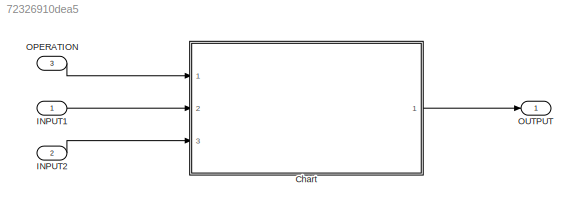
MODEL slx_72326910dea5
KIND model
CONFIG AbsTol = auto
CONFIG EnableMultiTasking = off
CONFIG FixedStep = auto
CONFIG MaxStep = auto
CONFIG MinStep = auto
CONFIG RelTol = 1e-3
CONFIG SampleTimeConstraint = Unconstrained
CONFIG Solver = FixedStepAuto
CONFIG SolverName = FixedStepAuto
CONFIG StartTime = 0.0
CONFIG StopTime = 100
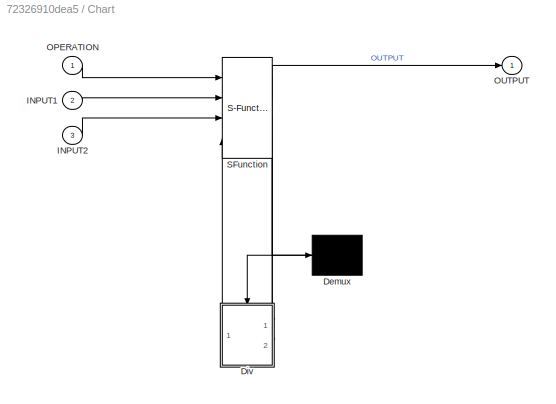
BLOCK [SubSystem] Chart
  BlockKeywords = __PRM__SERIALIZED__DATA__:Stateflow Chart,Stateflow Diagram
  ErrorFcn = Stateflow.Translate.translate
  PermitHierarchicalResolution = ExplicitOnly
  Ports = [3, 1]
  RequestExecContextInheritance = off
  SFBlockType = Chart
  TreatAsAtomicUnit = on
BLOCK [Demux] Chart/ Demux 
  Outputs = 1
  Ports = [1, 1]
BLOCK [S-Function] Chart/ SFunction 
  EnableBusSupport = on
  FunctionName = sf_sfun
  PortCounts = [4 4]
  Ports = [4, 4]
  SFcnIsStateOwnerBlock = off
  SFunctionDeploymentMode = off
  Tag = Stateflow S-Function req14 3
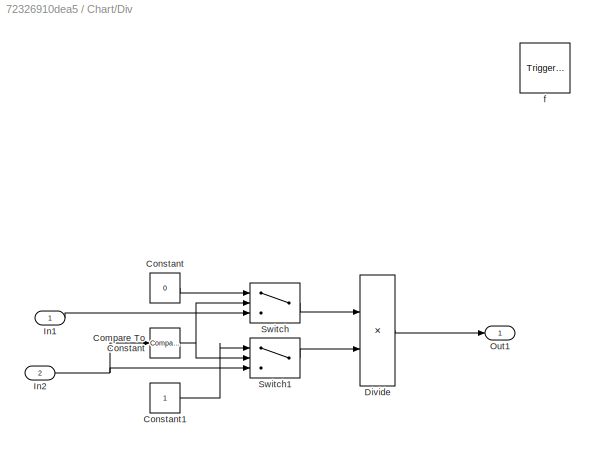
BLOCK [SubSystem] Chart/Div
  Ports = [2, 1, 0, 1]
  PreDeleteFcn = Stateflow.SLINSF.SimulinkMan.removePreDeleteFcn
  RequestExecContextInheritance = off
  UndoDeleteFcn = Stateflow.SLINSF.SimulinkMan.restorePreDeleteFcn
BLOCK [Reference] Chart/Div/Compare To Constant  REF=simulink/Logic and Bit
Operations/Compare
To Constant
  Ports = [1, 1]
  SourceBlock = simulink/Logic and Bit\nOperations/Compare\nTo Constant
  SourceProductBaseCode = SL
  SourceProductName = Simulink
  SourceType = Compare To Constant
BLOCK [Constant] Chart/Div/Constant
  Value = 0
BLOCK [Constant] Chart/Div/Constant1
BLOCK [Product] Chart/Div/Divide
  InputSameDT = off
  Inputs = */
  OutDataTypeStr = Inherit: Inherit via internal rule
  Ports = [2, 1]
  RndMeth = Floor
  SaturateOnIntegerOverflow = off
BLOCK [Inport] Chart/Div/In1
  IconDisplay = Port number
  OutDataTypeStr = double
  PortDimensions = 1
  SignalType = real
  VarSizeSig = No
BLOCK [Inport] Chart/Div/In2
  IconDisplay = Port number
  OutDataTypeStr = double
  Port = 2
  PortDimensions = 1
  SignalType = real
  VarSizeSig = No
BLOCK [Outport] Chart/Div/Out1
  IconDisplay = Port number
BLOCK [Switch] Chart/Div/Switch
  Criteria = u2 ~= 0
  InputSameDT = off
  SaturateOnIntegerOverflow = off
BLOCK [Switch] Chart/Div/Switch1
  Criteria = u2 ~= 0
  InputSameDT = off
  SaturateOnIntegerOverflow = off
BLOCK [TriggerPort] Chart/Div/f
  CopyFcn = Stateflow.SLINSF.SimulinkMan.removeBlockPreDeleteFcn
  Ports = []
  PreDeleteFcn = Stateflow.SLINSF.SimulinkMan.unsafePredeleteFcn
  StatesWhenEnabling = held
  TriggerType = function-call
  VariantControl = (inherit)
BLOCK [Inport] Chart/INPUT1
  IconDisplay = Port number
  Port = 2
BLOCK [Inport] Chart/INPUT2
  IconDisplay = Port number
  Port = 3
BLOCK [Inport] Chart/OPERATION
  IconDisplay = Port number
BLOCK [Outport] Chart/OUTPUT
  IconDisplay = Port number
BLOCK [Inport] INPUT1
  IconDisplay = Port number
BLOCK [Inport] INPUT2
  IconDisplay = Port number
  Port = 2
BLOCK [Inport] OPERATION
  IconDisplay = Port number
  Port = 3
BLOCK [Outport] OUTPUT
  IconDisplay = Port number
LINE Chart:1 -> OUTPUT:1
LINE INPUT1:1 -> Chart:2
LINE INPUT2:1 -> Chart:3
LINE OPERATION:1 -> Chart:1
CHART Chart states=9 transitions=15
  STATE_LABEL 'Addition_1_\nOUTPUT=INPUT1+INPUT2;'
  STATE_LABEL 'resetState'
  STATE_LABEL 'Out1 = Div(In1,In2)'
  STATE_LABEL 'Subtraction_2_\nOUTPUT=INPUT1-INPUT2;'
  STATE_LABEL 'SubtractionModulp_3_\nOUTPUT=INPUT1-INPUT2;'
  STATE_LABEL 'multiplication_4_\nOUTPUT=INPUT1*INPUT2;'
  STATE_LABEL 'exponential_5_\nloc1=uint32(INPUT1);\nloc2=uint32(INPUT2);\nOUTPUT=double(loc1^loc2);'
  STATE_LABEL 'division_6_\nOUTPUT=Div(INPUT1,INPUT2);'
  STATE_LABEL 'divisionmodulo_7_\nOUTPUT=rem(INPUT1,INPUT2);'
